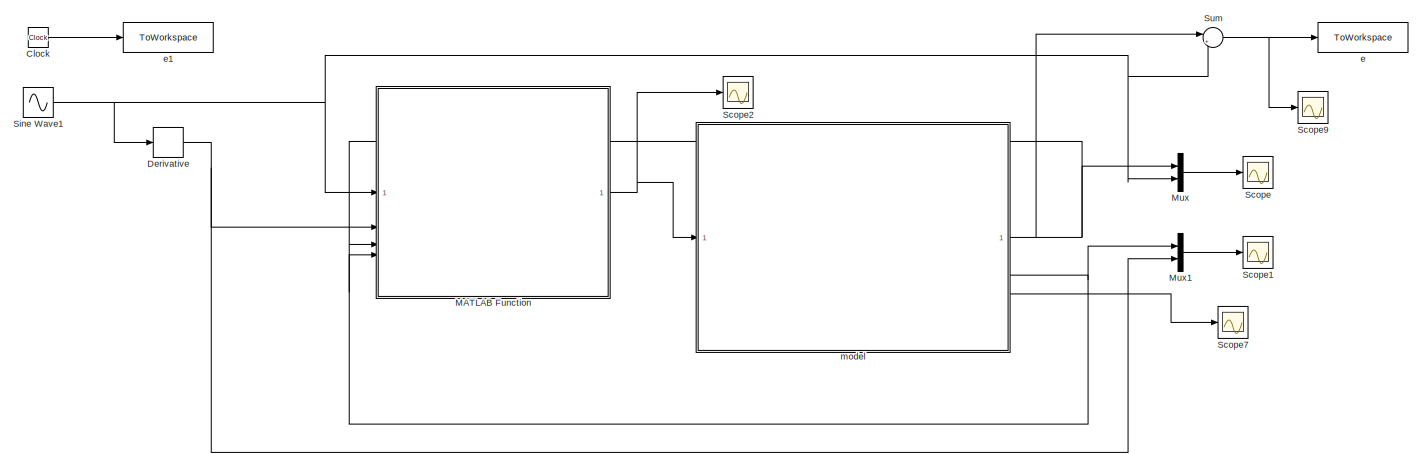
[diagram: root canvas - part 1/2, most of the canvas]
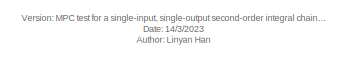
[diagram: root canvas - part 2/2, bottom left region]
MODEL slx_98e59f6b7754
KIND model
CONFIG AbsTol = auto
CONFIG EnableMultiTasking = off
CONFIG FixedStep = 0.001
CONFIG MaxStep = auto
CONFIG MinStep = auto
CONFIG RelTol = 1e-3
CONFIG SampleTimeConstraint = Unconstrained
CONFIG SolverName = ode4
CONFIG StartTime = 0.0
CONFIG StopTime = 10
BLOCK [Clock] Clock
BLOCK [Derivative] Derivative
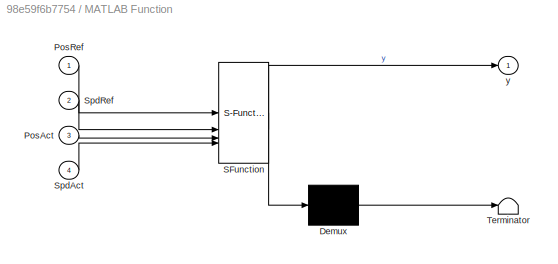
BLOCK [SubSystem] MATLAB Function
  ErrorFcn = Stateflow.Translate.translate
  PermitHierarchicalResolution = ExplicitOnly
  SFBlockType = MATLAB Function
  TreatAsAtomicUnit = on
BLOCK [Demux] MATLAB Function/ Demux 
  Outputs = 1
BLOCK [S-Function] MATLAB Function/ SFunction 
  EnableBusSupport = on
  FunctionName = sf_sfun
  PortCounts = [4 2]
  SFcnIsStateOwnerBlock = off
  SFunctionDeploymentMode = off
  Tag = Stateflow S-Function 1
BLOCK [Terminator] MATLAB Function/ Terminator 
BLOCK [Inport] MATLAB Function/PosAct
  Port = 3
BLOCK [Inport] MATLAB Function/PosRef
BLOCK [Inport] MATLAB Function/SpdAct
  Port = 4
BLOCK [Inport] MATLAB Function/SpdRef
  Port = 2
BLOCK [Outport] MATLAB Function/y
BLOCK [Mux] Mux
  DisplayOption = bar
  Inputs = 2
BLOCK [Mux] Mux1
  DisplayOption = bar
  Inputs = 2
BLOCK [Scope] Scope
  Floating = off
  NumInputPorts = 1
  ScopeSpecificationString = Simulink.scopes.TimeScopeBlockCfg('CurrentConfiguration', extmgr.ConfigurationSet(extmgr.Configuration('Core','General UI',true),extmgr.Configuration('Core','Source UI',true),extmgr.Configuration('Sources','WiredSimulink',true),extmgr.Configuration('Visuals','Time Domain',true,'SerializedDisplays',{struct('MinYLimReal','-1.2512','MaxYLimReal','1.25076','YLabelReal','','MinYLimMag','0.00000','MaxYL...<+1483ch>
BLOCK [Scope] Scope1
  Floating = off
  NumInputPorts = 1
  ScopeSpecificationString = Simulink.scopes.TimeScopeBlockCfg('CurrentConfiguration', extmgr.ConfigurationSet(extmgr.Configuration('Core','General UI',true),extmgr.Configuration('Core','Source UI',true),extmgr.Configuration('Sources','WiredSimulink',true,'DataLoggingVariableName','ScopeData1'),extmgr.Configuration('Visuals','Time Domain',true,'SerializedDisplays',{struct('MinYLimReal','-2.17217','MaxYLimReal','2.17142','YLab...<+1528ch>
BLOCK [Scope] Scope2
  Floating = off
  NumInputPorts = 1
  ScopeSpecificationString = Simulink.scopes.TimeScopeBlockCfg('CurrentConfiguration', extmgr.ConfigurationSet(extmgr.Configuration('Core','General UI',true),extmgr.Configuration('Core','Source UI',true),extmgr.Configuration('Sources','WiredSimulink',true,'DataLoggingVariableName','ScopeData2'),extmgr.Configuration('Visuals','Time Domain',true,'SerializedDisplays',{struct('MinYLimReal','-33.72058','MaxYLimReal','42.12017','YL...<+1446ch>
BLOCK [Scope] Scope7
  Floating = off
  NumInputPorts = 1
  ScopeSpecificationString = Simulink.scopes.TimeScopeBlockCfg('CurrentConfiguration', extmgr.ConfigurationSet(extmgr.Configuration('Core','General UI',true),extmgr.Configuration('Core','Source UI',true),extmgr.Configuration('Sources','WiredSimulink',true,'DataLoggingVariableName','ScopeData5'),extmgr.Configuration('Visuals','Time Domain',true,'SerializedDisplays',{struct('MinYLimReal','-12.5','MaxYLimReal','12.5','YLabelReal...<+1424ch>
BLOCK [Scope] Scope9
  Floating = off
  NumInputPorts = 1
  ScopeSpecificationString = Simulink.scopes.TimeScopeBlockCfg('CurrentConfiguration', extmgr.ConfigurationSet(extmgr.Configuration('Core','General UI',true),extmgr.Configuration('Core','Source UI',true),extmgr.Configuration('Sources','WiredSimulink',true,'DataLoggingVariableName','ScopeData1'),extmgr.Configuration('Visuals','Time Domain',true,'SerializedDisplays',{struct('MinYLimReal','-0.07943','MaxYLimReal','0.049','YLabel...<+1433ch>
BLOCK [Sin] Sine Wave1
  SampleTime = 0
BLOCK [Sum] Sum
  Inputs = |+-
BLOCK [ToWorkspace] e
  FixptAsFi = on
  MaxDataPoints = inf
  SampleTime = -1
  VariableName = e
BLOCK [ToWorkspace] e1
  FixptAsFi = on
  MaxDataPoints = inf
  SampleTime = -1
  VariableName = t
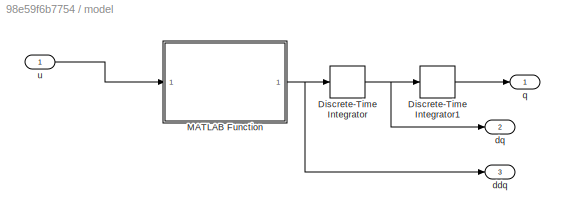
BLOCK [SubSystem] model
BLOCK [DiscreteIntegrator] model/Discrete-Time Integrator
  ICPrevOutput = DiscIntNeverNeededParam
  ICPrevScaledInput = DiscIntNeverNeededParam
  InitialConditionSetting = Auto
  SampleTime = -1
BLOCK [DiscreteIntegrator] model/Discrete-Time Integrator1
  ICPrevOutput = DiscIntNeverNeededParam
  ICPrevScaledInput = DiscIntNeverNeededParam
  InitialConditionSetting = Auto
  SampleTime = -1
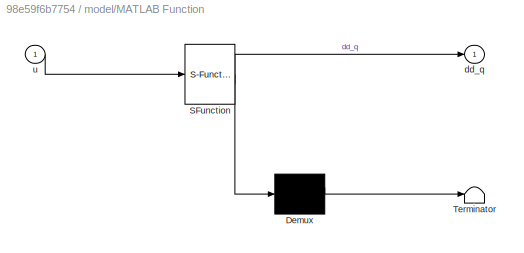
BLOCK [SubSystem] model/MATLAB Function
  ErrorFcn = Stateflow.Translate.translate
  PermitHierarchicalResolution = ExplicitOnly
  SFBlockType = MATLAB Function
  TreatAsAtomicUnit = on
BLOCK [Demux] model/MATLAB Function/ Demux 
  Outputs = 1
BLOCK [S-Function] model/MATLAB Function/ SFunction 
  EnableBusSupport = on
  FunctionName = sf_sfun
  PortCounts = [1 2]
  SFcnIsStateOwnerBlock = off
  SFunctionDeploymentMode = off
  Tag = Stateflow S-Function 2
BLOCK [Terminator] model/MATLAB Function/ Terminator 
BLOCK [Outport] model/MATLAB Function/dd_q
BLOCK [Inport] model/MATLAB Function/u
BLOCK [Outport] model/ddq
  Port = 3
BLOCK [Outport] model/dq
  Port = 2
BLOCK [Outport] model/q
BLOCK [Inport] model/u
ANNOTATION (root): Version: MPC test for a single-input, single-output s econd-order integral chain system Date: 14/3/2023 Author: Linyan Han
LINE Clock:1 -> e1:1
NET Derivative:1 -> MATLAB Function:2, Mux1:2
NET MATLAB Function:1 -> Scope2:1, model:1
LINE Mux1:1 -> Scope1:1
LINE Mux:1 -> Scope:1
NET Sine Wave1:1 -> Derivative:1, MATLAB Function:1, Mux:2, Sum:2
NET Sum:1 -> Scope9:1, e:1
LINE model/Discrete-Time Integrator1:1 -> model/q:1
NET model/Discrete-Time Integrator:1 -> model/Discrete-Time Integrator1:1, model/dq:1
NET model/MATLAB Function:1 -> model/Discrete-Time Integrator:1, model/ddq:1
LINE model/u:1 -> model/MATLAB Function:1
NET model:1 -> MATLAB Function:3, Mux:1, Sum:1
NET model:2 -> MATLAB Function:4, Mux1:1
LINE model:3 -> Scope7:1
note: NET lines group one-source signal fan-out (src -> all destinations, sorted); 1:1 wires keep LINE
CHART MATLAB Function states=1 transitions=1
  STATE_LABEL 'eML_blk_kernel()'
  STATE_LABEL 'SCRIPT:\nfunction y =mpc11(PosRef,SpdRef,PosAct,SpdAct)\n\n% %%%%%%%%%%%%%%%%%%%%%%%%%%%%\nh1= 0.001;%采样时间\nAp = [1 h1;0 1];\nBp = [0;h1];   \nCp = [1 0];\n\nrk=PosRef;\n% % %%%%%%%%%%%% 初始化 %%%%%%%%%%%%%\nNp=25;\nNc =1;\nR =0.01*eye(Nc);\nQ = 50000*eye(Np);\n%%%%%%%%%%%%%%%%%%%%%%%%%%%%%%%%%%%% \n\n[m2,n2]=size(Cp);\nh=zeros(Np,n2);\nh(1,:)=Cp; \n\n[m3,n3]=size(Cp*Ap);\nF=zeros(Np,n3);\nF(1,:)=Cp*Ap;\n\n[m4,n4]=size(Cp);...<+1099ch>'
CHART model/MATLAB Function states=1 transitions=1
  STATE_LABEL 'eML_blk_kernel()'
  STATE_LABEL 'SCRIPT:\nfunction dd_q = f(u)\n\ndd_q = u;\n'
CHART  states=0 transitions=0
CHART  states=0 transitions=0
